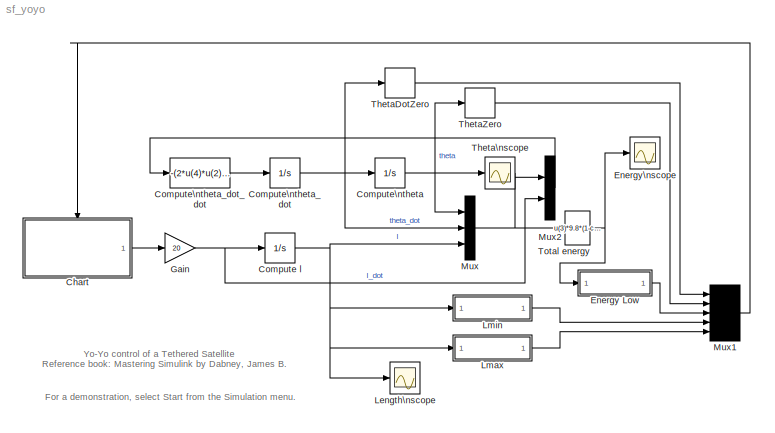
MODEL sf_yoyo
KIND model
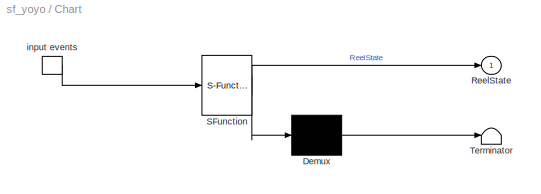
BLOCK [SubSystem] Chart
  MaskDescription = Stateflow diagram
  MaskDisplay = plot(sf('Private','sfblk','xIcon'),sf('Private','sfblk','yIcon'));text(0.5,0,sf('Private', 'sfblk', 'tIcon'),'HorizontalAl','Center','VerticalAl','Bottom');
  MaskIconFrame = off
  MaskIconOpaque = off
  MaskIconRotate = none
  MaskIconUnits = autoscale
  MaskSelfModifiable = on
  MaskType = Stateflow
  MinAlgLoopOccurrences = off
  Ports = [0, 1, 0, 1]
  PropExecContextAcrossSSBoundary = on
  RTWSystemCode = Auto
  TreatAsAtomicUnit = on
BLOCK [Demux] Chart/ Demux 
  Outputs = 1
  Ports = [1, 1]
BLOCK [S-Function] Chart/ SFunction 
  FunctionName = sf_sfun
  PortCounts = [1 2]
  Ports = [1, 2]
  Tag = Stateflow S-Function sf_yoyo 1
BLOCK [Terminator] Chart/ Terminator 
BLOCK [TriggerPort] Chart/ input events 
  Ports = [0, 1]
  ShowOutputPort = on
  TriggerType = either
BLOCK [Outport] Chart/ReelState
  BusOutputAsStruct = off
  IconDisplay = Port number
BLOCK [Integrator] Compute l
  InitialCondition = 100
  LowerSaturationLimit = 95
  Ports = [1, 1]
  UpperSaturationLimit = 105
BLOCK [Integrator] Compute\ntheta
  InitialCondition = 0.16
  Ports = [1, 1]
BLOCK [Integrator] Compute\ntheta_dot
  Ports = [1, 1]
BLOCK [Fcn] Compute\ntheta_dot_dot
  Expr = -(2*u(4)*u(2)+9.8*sin(u(1)))/u(3)
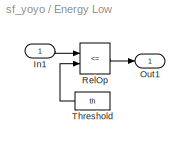
BLOCK [SubSystem] Energy Low
  MaskDisplay = disp('y = (u <= lim)')
  MaskEnableString = on
  MaskIconFrame = on
  MaskIconOpaque = on
  MaskIconRotate = none
  MaskIconUnits = autoscale
  MaskPromptString = Lower Limit
  MaskStyleString = edit
  MaskToolTipString = on
  MaskTunableValueString = on
  MaskValueString = 0.001
  MaskVariables = th=@1;
  MaskVisibilityString = on
  MinAlgLoopOccurrences = off
  Ports = [1, 1]
  PropExecContextAcrossSSBoundary = on
  RTWSystemCode = Auto
  TreatAsAtomicUnit = off
BLOCK [Inport] Energy Low/In1
  IconDisplay = Port number
  LatchInput = off
  Port = 1
BLOCK [Outport] Energy Low/Out1
  BusOutputAsStruct = off
  IconDisplay = Port number
BLOCK [RelationalOperator] Energy Low/RelOp
  InputSameDT = off
  Operator = <=
BLOCK [Constant] Energy Low/Threshold
  Value = th
BLOCK [Scope] Energy\nscope
  DataFormat = StructureWithTime
  NumInputPorts = 1
  Ports = [1]
  SaveName = EnergyTraj
  SaveToWorkspace = on
  TimeRange = 500
  YMax = 15
  YMin = 0
  ZoomMode = yonly
BLOCK [Gain] Gain
  Gain = 20
BLOCK [Scope] Length\nscope
  DataFormat = StructureWithTime
  NumInputPorts = 1
  Ports = [1]
  SaveName = LengthTraj
  SaveToWorkspace = on
  TimeRange = 500
  YMax = 110
  YMin = 90
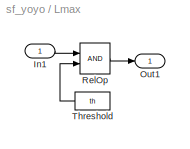
BLOCK [SubSystem] Lmax
  MaskDisplay = disp('y = (u >= lim)')
  MaskEnableString = on
  MaskIconFrame = on
  MaskIconOpaque = on
  MaskIconRotate = none
  MaskIconUnits = autoscale
  MaskPromptString = Upper Limit
  MaskStyleString = edit
  MaskToolTipString = on
  MaskTunableValueString = on
  MaskValueString = 105
  MaskVariables = th=@1;
  MaskVisibilityString = on
  MinAlgLoopOccurrences = off
  Ports = [1, 1]
  PropExecContextAcrossSSBoundary = on
  RTWSystemCode = Auto
  TreatAsAtomicUnit = off
BLOCK [Inport] Lmax/In1
  IconDisplay = Port number
  LatchInput = off
  Port = 1
BLOCK [Outport] Lmax/Out1
  BusOutputAsStruct = off
  IconDisplay = Port number
BLOCK [RelationalOperator] Lmax/RelOp
  InputSameDT = off
BLOCK [Constant] Lmax/Threshold
  Value = th
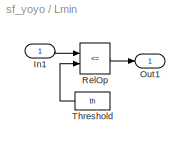
BLOCK [SubSystem] Lmin
  MaskDisplay = disp('y = (u <= lim)')
  MaskEnableString = on
  MaskIconFrame = on
  MaskIconOpaque = on
  MaskIconRotate = none
  MaskIconUnits = autoscale
  MaskPromptString = Lower Limit
  MaskStyleString = edit
  MaskToolTipString = on
  MaskTunableValueString = on
  MaskValueString = 95
  MaskVariables = th=@1;
  MaskVisibilityString = on
  MinAlgLoopOccurrences = off
  Ports = [1, 1]
  PropExecContextAcrossSSBoundary = on
  RTWSystemCode = Auto
  TreatAsAtomicUnit = off
BLOCK [Inport] Lmin/In1
  IconDisplay = Port number
  LatchInput = off
  Port = 1
BLOCK [Outport] Lmin/Out1
  BusOutputAsStruct = off
  IconDisplay = Port number
BLOCK [RelationalOperator] Lmin/RelOp
  InputSameDT = off
  Operator = <=
BLOCK [Constant] Lmin/Threshold
  Value = th
BLOCK [Mux] Mux
  DisplayOption = bar
  Inputs = 3
  Ports = [3, 1]
BLOCK [Mux] Mux1
  Inputs = 5
  Ports = [5, 1]
BLOCK [Mux] Mux2
  DisplayOption = bar
  Inputs = 2
  Ports = [2, 1]
BLOCK [HitCross] ThetaDotZero
  HitCrossingDirection = either
  Ports = [1, 1]
BLOCK [HitCross] ThetaZero
  HitCrossingDirection = either
  Ports = [1, 1]
BLOCK [Scope] Theta\nscope
  DataFormat = StructureWithTime
  NumInputPorts = 1
  Ports = [1]
  SaveName = ThetaTraj
  SaveToWorkspace = on
  TimeRange = 500
  YMax = 0.2
  YMin = -0.2
BLOCK [Fcn] Total energy 
  Expr = u(3)*9.8*(1-cos(u(1))) + 0.5*u(3)*u(3)*u(2)*u(2)
ANNOTATION (root): For a demonstration, select Start from the Simulation menu.
ANNOTATION (root): Reference book: Mastering Simulink by Dabney, James B.
ANNOTATION (root): Yo-Yo control of a Tethered Satellite\n
LINE Chart/ Demux :1 -> Chart/ Terminator :1
LINE Chart/ SFunction :1 -> Chart/ Demux :1
LINE Chart/ SFunction :2 -> Chart/ReelState:1
LINE Chart/ input events :1 -> Chart/ SFunction :1
LINE Chart:1 -> Gain:1
NET Compute l:1 -> Length\nscope:1, Lmax:1, Lmin:1, Mux:3
NET Compute\ntheta:1 -> Mux:1, ThetaZero:1, Theta\nscope:1
NET Compute\ntheta_dot:1 -> Compute\ntheta:1, Mux:2, ThetaDotZero:1
LINE Compute\ntheta_dot_dot:1 -> Compute\ntheta_dot:1
LINE Energy Low/In1:1 -> Energy Low/RelOp:1
LINE Energy Low/RelOp:1 -> Energy Low/Out1:1
LINE Energy Low/Threshold:1 -> Energy Low/RelOp:2
LINE Energy Low:1 -> Mux1:3
NET Gain:1 -> Compute l:1, Mux2:2
LINE Lmax/In1:1 -> Lmax/RelOp:1
LINE Lmax/RelOp:1 -> Lmax/Out1:1
LINE Lmax/Threshold:1 -> Lmax/RelOp:2
LINE Lmax:1 -> Mux1:5
LINE Lmin/In1:1 -> Lmin/RelOp:1
LINE Lmin/RelOp:1 -> Lmin/Out1:1
LINE Lmin/Threshold:1 -> Lmin/RelOp:2
LINE Lmin:1 -> Mux1:4
LINE Mux1:1 -> Chart:trigger
LINE Mux2:1 -> Compute\ntheta_dot_dot:1
NET Mux:1 -> Mux2:1, Total energy :1
LINE ThetaDotZero:1 -> Mux1:1
LINE ThetaZero:1 -> Mux1:2
NET Total energy :1 -> Energy Low:1, Energy\nscope:1
note: NET lines group one-source signal fan-out (src -> all destinations, sorted); 1:1 wires keep LINE
CHART Chart states=6 transitions=7
  STATE_LABEL 'Active'
  STATE_LABEL 'ReelMoving\\n/* example of Moore type action */\\nexit: ReelState = 0;'
  STATE_LABEL 'ReelOut\\nentry: ReelState = 1;'
  STATE_LABEL 'ReelStop'
  STATE_LABEL 'ReelIn\\nentry:ReelState= -1;'
  STATE_LABEL 'Inactive'
